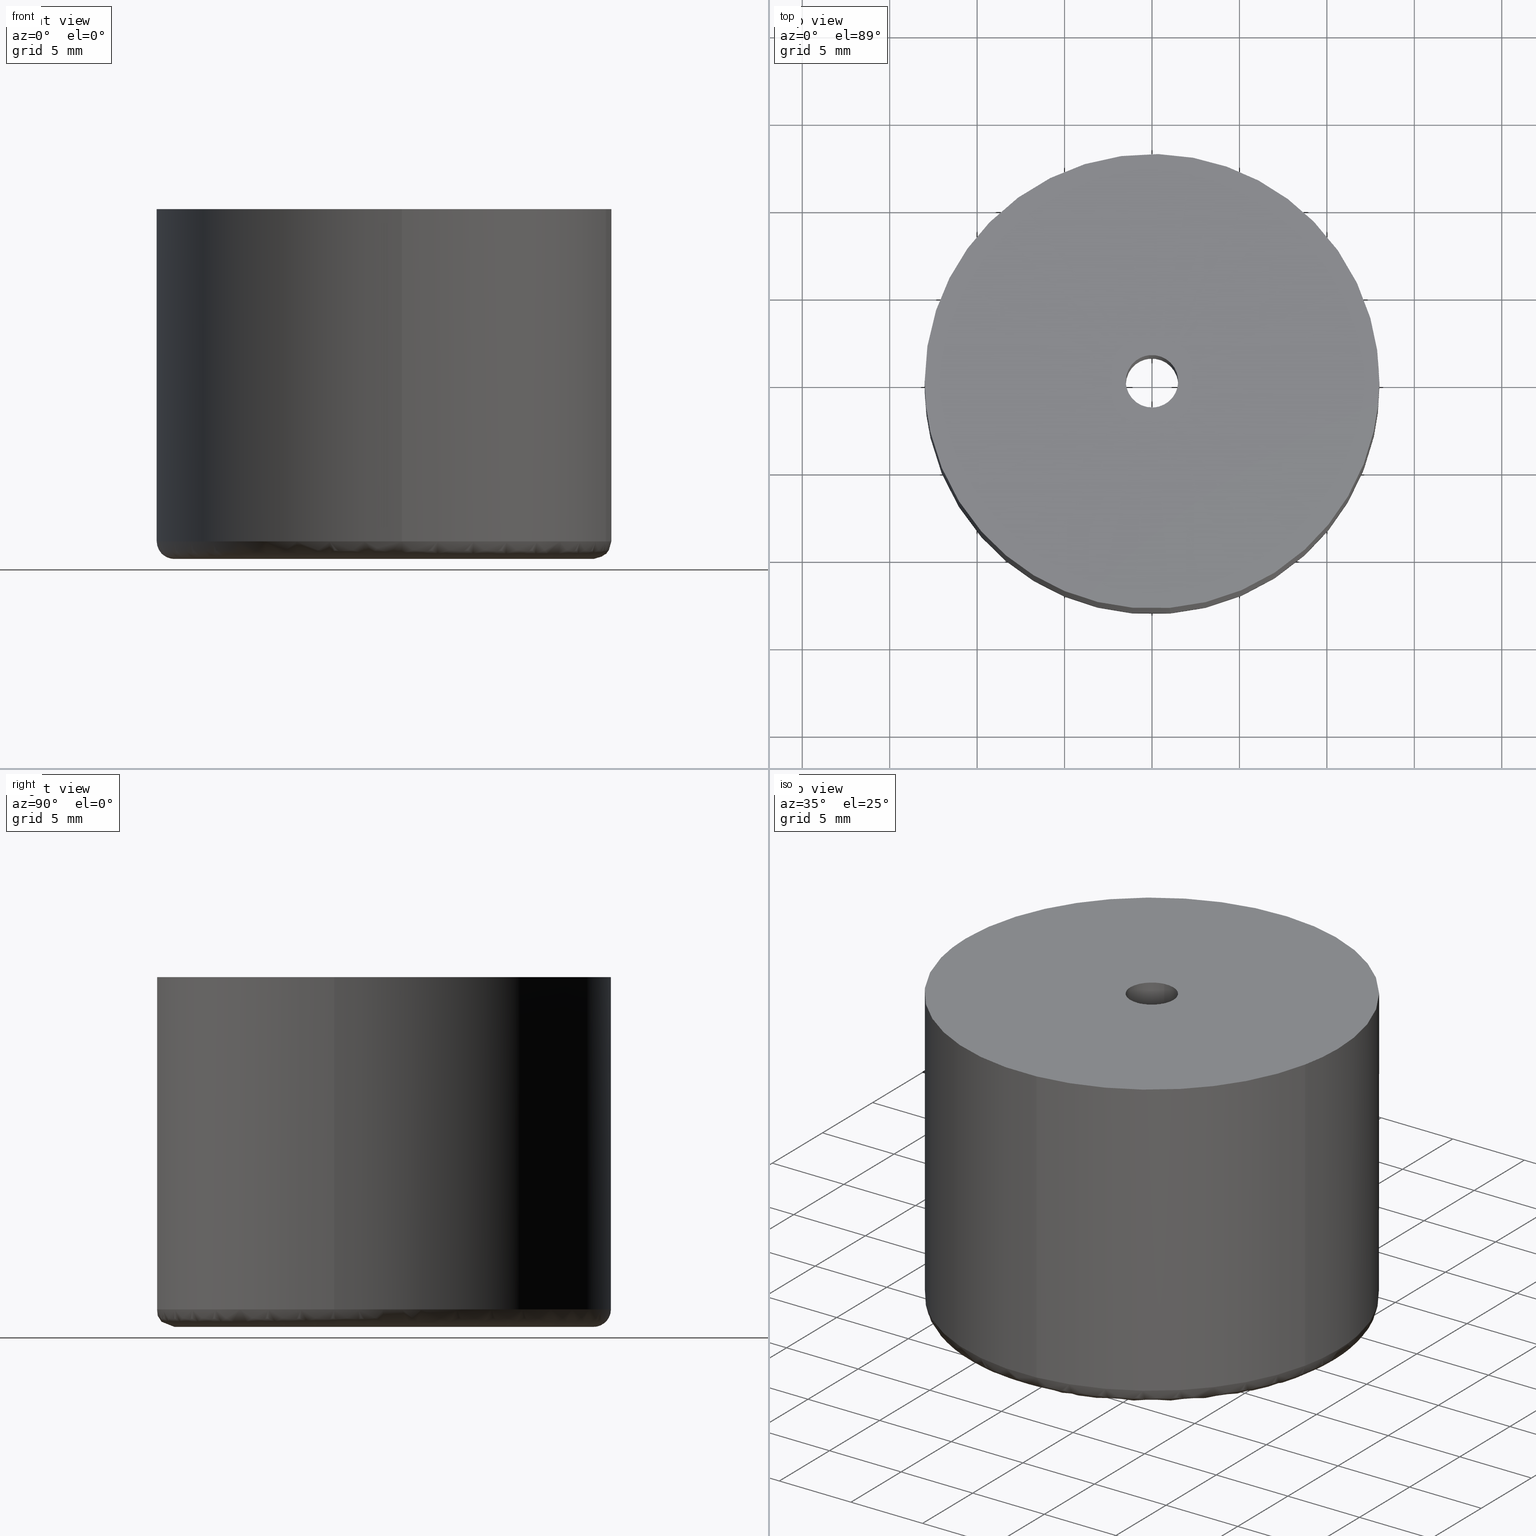
[diagram: canonical four-view strip — front | top / right | iso, engineering-drawing reading convention]
A machine part, canonical four-view strip (front | top / right | iso — engineering-drawing reading convention). The complete STEP part file that produces these views, byte-faithful:
ISO-10303-21;
HEADER;
/****************************************************************
 * Generated by software with PDE/Lib inside                    *
 * PDElib Version 4.4.1-0003, patched  Thursday August 19 11:58 *
 * International Technegroup Inc. (www.iti-oh.com)              *
 ****************************************************************/
FILE_DESCRIPTION((''),'2;1');
FILE_NAME('','2005-12-14T14:07:08',(''),(''),'','CADfix','');
FILE_SCHEMA(('AUTOMOTIVE_DESIGN'));
ENDSEC;
DATA;
#5=APPLICATION_CONTEXT('automotive design');
#6=APPLICATION_PROTOCOL_DEFINITION('Draft International Standard','automotive_design',1998,#5);
#7=PRODUCT_CONTEXT('None',#5,'mechanical');
#8=PRODUCT('rubber foot','','None',(#7));
#9=PRODUCT_RELATED_PRODUCT_CATEGORY('part','description',(#8));
#10=PRODUCT_DEFINITION_FORMATION('None','None',#8);
#11=PRODUCT_DEFINITION_CONTEXT('part definition',#5,'design');
#12=PRODUCT_DEFINITION('None','None',#10,#11);
#18=(NAMED_UNIT(*)PLANE_ANGLE_UNIT()SI_UNIT($,.RADIAN.));
#19=DIMENSIONAL_EXPONENTS(0.0,0.0,0.0,0.0,0.0,0.0,0.0);
#20=PLANE_ANGLE_MEASURE_WITH_UNIT(PLANE_ANGLE_MEASURE(0.017453292500000),#18);
#24=(CONVERSION_BASED_UNIT('DEGREE',#20)NAMED_UNIT(#19)PLANE_ANGLE_UNIT());
#28=(NAMED_UNIT(*)SI_UNIT($,.STERADIAN.)SOLID_ANGLE_UNIT());
#32=(LENGTH_UNIT()NAMED_UNIT(*)SI_UNIT(.MILLI.,.METRE.));
#34=UNCERTAINTY_MEASURE_WITH_UNIT(LENGTH_MEASURE(0.001000000000000),#32,'DISTANCE_ACCURACY_VALUE','');
#36=(GEOMETRIC_REPRESENTATION_CONTEXT(3)GLOBAL_UNCERTAINTY_ASSIGNED_CONTEXT((#34))GLOBAL_UNIT_ASSIGNED_CONTEXT((#24,#28,#32))REPRESENTATION_CONTEXT('None','None'));
#37=AXIS2_PLACEMENT_3D('',#38,#39,#40);
#38=CARTESIAN_POINT('',(0.0,0.0,0.0));
#39=DIRECTION('',(0.0,0.0,1.0));
#40=DIRECTION('',(1.0,0.0,0.0));
#41=ADVANCED_BREP_SHAPE_REPRESENTATION('',(#37,#849),#36);
#42=PRODUCT_DEFINITION_SHAPE('','',#12);
#43=SHAPE_DEFINITION_REPRESENTATION(#42,#41);
#44=CARTESIAN_POINT('',(12.705251811717318,-2.753750501336992,20.475000000003593));
#45=CARTESIAN_POINT('',(12.696430323743089,-2.793259911915609,20.475000000003597));
#46=CARTESIAN_POINT('',(10.594710865327652,-12.206376751862107,20.475000000003604));
#47=CARTESIAN_POINT('',(0.983351133643640,-12.962807167651045,20.475000000003600));
#48=CARTESIAN_POINT('',(0.946819630360228,-12.965682259312320,20.475000000003593));
#49=CARTESIAN_POINT('',(12.705251811717318,-2.753750501336992,0.513124999852447));
#50=CARTESIAN_POINT('',(12.696430323743089,-2.793259911915609,0.513124999852447));
#51=CARTESIAN_POINT('',(10.594710865327652,-12.206376751862107,0.513124999852447));
#52=CARTESIAN_POINT('',(0.983351133643640,-12.962807167651045,0.513124999852447));
#53=CARTESIAN_POINT('',(0.946819630360228,-12.965682259312320,0.513124999852447));
#61=(BOUNDED_SURFACE()B_SPLINE_SURFACE(2,1,((#44,#49),(#45,#50),(#46,#51),(#47,#52),(#48,#53)),.UNSPECIFIED.,.F.,.F.,.U.)B_SPLINE_SURFACE_WITH_KNOTS((3,1,1,3),(2,2),(0.0,0.085578205599617,17.199411616126010,17.284989678366841),(0.0,19.961875000151149),.UNSPECIFIED.)GEOMETRIC_REPRESENTATION_ITEM()RATIONAL_B_SPLINE_SURFACE(((0.907680205931852,0.907680205931852),(0.906977187955774,0.906977187955774),(0.765685424949238,0.765685424949238),(1.001171694663996,1.001171694663996),(1.002343389327992,1.002343389327992)))REPRESENTATION_ITEM('')SURFACE());
#62=CARTESIAN_POINT('',(12.687596999485550,-2.832822334452530,1.000000000000004));
#63=VERTEX_POINT('',#62);
#64=CARTESIAN_POINT('',(1.019960697844671,-12.959925932457899,1.000000000000026));
#65=VERTEX_POINT('',#64);
#66=CARTESIAN_POINT('',(12.687596999485553,-2.832822334452531,1.000000000000004));
#67=CARTESIAN_POINT('',(10.594716131196428,-12.206381947379535,1.000000000000014));
#68=CARTESIAN_POINT('',(1.019960697844671,-12.959925932457905,1.000000000000026));
#76=(BOUNDED_CURVE()B_SPLINE_CURVE(2,(#66,#67,#68),.UNSPECIFIED.,.F.,.U.)B_SPLINE_CURVE_WITH_KNOTS((3,3),(0.537286560370751,0.736331400453952),.UNSPECIFIED.)CURVE()GEOMETRIC_REPRESENTATION_ITEM()RATIONAL_B_SPLINE_CURVE((0.925662740296602,0.762027680026814,0.969723564491107))REPRESENTATION_ITEM(''));
#77=EDGE_CURVE('',#63,#65,#76,.T.);
#78=ORIENTED_EDGE('',*,*,#77,.F.);
#79=CARTESIAN_POINT('',(12.687596976655650,-2.832822436703005,20.0));
#80=VERTEX_POINT('',#79);
#81=CARTESIAN_POINT('',(12.687596976655650,-2.832822436703005,20.0));
#82=CARTESIAN_POINT('',(12.687596999485550,-2.832822334452530,1.000000000000004));
#83=QUASI_UNIFORM_CURVE('',1,(#81,#82),.UNSPECIFIED.,.F.,.U.);
#84=EDGE_CURVE('',#80,#63,#83,.T.);
#85=ORIENTED_EDGE('',*,*,#84,.F.);
#86=CARTESIAN_POINT('',(1.019960790914386,-12.959925925133270,20.0));
#87=VERTEX_POINT('',#86);
#88=CARTESIAN_POINT('',(12.687596976655650,-2.832822436703005,19.999999999999996));
#89=CARTESIAN_POINT('',(10.594716066193335,-12.206381883309835,20.000000000000004));
#90=CARTESIAN_POINT('',(1.019960790914386,-12.959925925133268,20.000000000000004));
#98=(BOUNDED_CURVE()B_SPLINE_CURVE(2,(#88,#89,#90),.UNSPECIFIED.,.F.,.U.)B_SPLINE_CURVE_WITH_KNOTS((3,3),(0.537286561689504,0.736331399222893),.UNSPECIFIED.)CURVE()GEOMETRIC_REPRESENTATION_ITEM()RATIONAL_B_SPLINE_CURVE((0.925662738128303,0.762027682414940,0.969723561921979))REPRESENTATION_ITEM(''));
#99=EDGE_CURVE('',#80,#87,#98,.T.);
#100=ORIENTED_EDGE('',*,*,#99,.T.);
#101=CARTESIAN_POINT('',(1.019960790914386,-12.959925925133270,20.0));
#102=CARTESIAN_POINT('',(1.019960697844671,-12.959925932457899,1.000000000000026));
#103=QUASI_UNIFORM_CURVE('',1,(#101,#102),.UNSPECIFIED.,.F.,.U.);
#104=EDGE_CURVE('',#87,#65,#103,.T.);
#105=ORIENTED_EDGE('',*,*,#104,.T.);
#106=EDGE_LOOP('',(#78,#85,#100,#105));
#107=FACE_OUTER_BOUND('',#106,.T.);
#108=ADVANCED_FACE('',(#107),#61,.T.);
#109=CARTESIAN_POINT('',(1.019968244461983,-12.959925338530660,20.475000000003600));
#110=CARTESIAN_POINT('',(-11.939957094068674,-13.979893582992641,20.475000000003604));
#111=CARTESIAN_POINT('',(-12.959925338530660,-1.019968244461983,20.475000000003600));
#112=CARTESIAN_POINT('',(-13.979893582992641,11.939957094068674,20.475000000003604));
#113=CARTESIAN_POINT('',(-1.019968244461983,12.959925338530660,20.475000000003600));
#114=CARTESIAN_POINT('',(11.939957094068674,13.979893582992641,20.475000000003604));
#115=CARTESIAN_POINT('',(12.959925338530660,1.019968244461983,20.475000000003600));
#116=CARTESIAN_POINT('',(13.113146095097436,-0.926886058307065,20.475000000003597));
#117=CARTESIAN_POINT('',(12.687595149701604,-2.832830619233736,20.475000000003593));
#118=CARTESIAN_POINT('',(1.019968244461983,-12.959925338530660,0.513124999852447));
#119=CARTESIAN_POINT('',(-11.939957094068674,-13.979893582992641,0.513124999852447));
#120=CARTESIAN_POINT('',(-12.959925338530660,-1.019968244461983,0.513124999852447));
#121=CARTESIAN_POINT('',(-13.979893582992641,11.939957094068674,0.513124999852447));
#122=CARTESIAN_POINT('',(-1.019968244461983,12.959925338530660,0.513124999852447));
#123=CARTESIAN_POINT('',(11.939957094068674,13.979893582992641,0.513124999852447));
#124=CARTESIAN_POINT('',(12.959925338530660,1.019968244461983,0.513124999852447));
#125=CARTESIAN_POINT('',(13.113146095097436,-0.926886058307065,0.513124999852447));
#126=CARTESIAN_POINT('',(12.687595149701604,-2.832830619233736,0.513124999852447));
#134=(BOUNDED_SURFACE()B_SPLINE_SURFACE(2,1,((#109,#118),(#110,#119),(#111,#120),(#112,#121),(#113,#122),(#114,#123),(#115,#124),(#116,#125),(#117,#126)),.UNSPECIFIED.,.F.,.F.,.U.)B_SPLINE_SURFACE_WITH_KNOTS((3,2,2,2,3),(2,2),(0.0,21.539105243400929,43.078210486801872,64.617315730202805,68.925136778882987),(0.0,19.961875000151149),.UNSPECIFIED.)GEOMETRIC_REPRESENTATION_ITEM()RATIONAL_B_SPLINE_SURFACE(((1.0,1.0),(0.707106781186548,0.707106781186548),(1.0,1.0),(0.707106781186548,0.707106781186548),(1.0,1.0),(0.707106781186548,0.707106781186548),(1.0,1.0),(0.941421356237310,0.941421356237310),(0.906274169979695,0.906274169979695)))REPRESENTATION_ITEM('')SURFACE());
#135=CARTESIAN_POINT('',(13.0,0.0,1.000000000000014));
#136=VERTEX_POINT('',#135);
#137=CARTESIAN_POINT('',(13.0,0.0,1.000000000000014));
#138=CARTESIAN_POINT('',(12.999999999999996,-1.433637033025100,1.000000000000014));
#139=CARTESIAN_POINT('',(12.687596999485551,-2.832822334452530,1.000000000000004));
#147=(BOUNDED_CURVE()B_SPLINE_CURVE(2,(#137,#138,#139),.UNSPECIFIED.,.F.,.U.)B_SPLINE_CURVE_WITH_KNOTS((3,3),(0.500000000000000,0.537286560370751),.UNSPECIFIED.)CURVE()GEOMETRIC_REPRESENTATION_ITEM()RATIONAL_B_SPLINE_CURVE((1.0,0.956316077258115,0.925662740296602))REPRESENTATION_ITEM(''));
#148=EDGE_CURVE('',#136,#63,#147,.T.);
#149=ORIENTED_EDGE('',*,*,#148,.F.);
#150=CARTESIAN_POINT('',(-0.326691240763947,12.995894460682880,0.999999999856145));
#151=VERTEX_POINT('',#150);
#152=CARTESIAN_POINT('',(-0.326691240763947,12.995894460682887,0.999999999856145));
#153=CARTESIAN_POINT('',(-0.163371417604494,13.000000000000004,1.000000000000014));
#154=CARTESIAN_POINT('',(0.0,13.0,1.000000000000014));
#155=CARTESIAN_POINT('',(13.0,13.0,1.000000000000014));
#156=CARTESIAN_POINT('',(13.0,0.0,1.000000000000014));
#164=(BOUNDED_CURVE()B_SPLINE_CURVE(2,(#152,#153,#154,#155,#156),.UNSPECIFIED.,.F.,.U.)B_SPLINE_CURVE_WITH_KNOTS((3,2,3),(0.245579891769793,0.250000000000000,0.500000000000000),.UNSPECIFIED.)CURVE()GEOMETRIC_REPRESENTATION_ITEM()RATIONAL_B_SPLINE_CURVE((0.989826157681542,0.994821521091803,1.0,0.707106781186547,1.0))REPRESENTATION_ITEM(''));
#165=EDGE_CURVE('',#151,#136,#164,.T.);
#166=ORIENTED_EDGE('',*,*,#165,.F.);
#167=CARTESIAN_POINT('',(-13.0,0.0,1.000000000000014));
#168=VERTEX_POINT('',#167);
#169=CARTESIAN_POINT('',(-13.0,0.0,1.000000000000014));
#170=CARTESIAN_POINT('',(-13.000000000000002,12.677312390347351,1.000000000000014));
#171=CARTESIAN_POINT('',(-0.326691240763947,12.995894460682887,0.999999999856145));
#179=(BOUNDED_CURVE()B_SPLINE_CURVE(2,(#169,#170,#171),.UNSPECIFIED.,.F.,.U.)B_SPLINE_CURVE_WITH_KNOTS((3,3),(0.0,0.245579891769793),.UNSPECIFIED.)CURVE()GEOMETRIC_REPRESENTATION_ITEM()RATIONAL_B_SPLINE_CURVE((1.0,0.712285260094745,0.989826157681542))REPRESENTATION_ITEM(''));
#180=EDGE_CURVE('',#168,#151,#179,.T.);
#181=ORIENTED_EDGE('',*,*,#180,.F.);
#182=CARTESIAN_POINT('',(-12.995894460682891,-0.326691240763720,0.999999999856132));
#183=VERTEX_POINT('',#182);
#184=CARTESIAN_POINT('',(-12.995894460682889,-0.326691240763720,0.999999999856132));
#185=CARTESIAN_POINT('',(-13.000000000000002,-0.163371417604268,1.000000000000014));
#186=CARTESIAN_POINT('',(-13.0,0.0,1.000000000000014));
#194=(BOUNDED_CURVE()B_SPLINE_CURVE(2,(#184,#185,#186),.UNSPECIFIED.,.F.,.U.)B_SPLINE_CURVE_WITH_KNOTS((3,3),(0.995579891769799,1.0),.UNSPECIFIED.)CURVE()GEOMETRIC_REPRESENTATION_ITEM()RATIONAL_B_SPLINE_CURVE((0.989826157681556,0.994821521091810,1.0))REPRESENTATION_ITEM(''));
#195=EDGE_CURVE('',#183,#168,#194,.T.);
#196=ORIENTED_EDGE('',*,*,#195,.F.);
#197=CARTESIAN_POINT('',(1.019960697844671,-12.959925932457905,1.000000000000026));
#198=CARTESIAN_POINT('',(0.510767600280531,-13.000000000000004,1.000000000000014));
#199=CARTESIAN_POINT('',(0.0,-13.0,1.000000000000014));
#200=CARTESIAN_POINT('',(-12.677312390347860,-13.0,1.000000000000014));
#201=CARTESIAN_POINT('',(-12.995894460682889,-0.326691240763720,0.999999999856132));
#209=(BOUNDED_CURVE()B_SPLINE_CURVE(2,(#197,#198,#199,#200,#201),.UNSPECIFIED.,.F.,.U.)B_SPLINE_CURVE_WITH_KNOTS((3,2,3),(0.736331400453952,0.750000000000000,0.995579891769800),.UNSPECIFIED.)CURVE()GEOMETRIC_REPRESENTATION_ITEM()RATIONAL_B_SPLINE_CURVE((0.969723564491107,0.983986239529144,1.0,0.712285260094736,0.989826157681558))REPRESENTATION_ITEM(''));
#210=EDGE_CURVE('',#65,#183,#209,.T.);
#211=ORIENTED_EDGE('',*,*,#210,.F.);
#212=ORIENTED_EDGE('',*,*,#104,.F.);
#213=CARTESIAN_POINT('',(-13.0,0.0,20.0));
#214=VERTEX_POINT('',#213);
#215=CARTESIAN_POINT('',(1.019960790914386,-12.959925925133268,20.000000000000004));
#216=CARTESIAN_POINT('',(0.510767647031337,-13.0,20.0));
#217=CARTESIAN_POINT('',(0.0,-13.0,20.0));
#218=CARTESIAN_POINT('',(-13.0,-13.0,20.0));
#219=CARTESIAN_POINT('',(-13.0,0.0,20.0));
#227=(BOUNDED_CURVE()B_SPLINE_CURVE(2,(#215,#216,#217,#218,#219),.UNSPECIFIED.,.F.,.U.)B_SPLINE_CURVE_WITH_KNOTS((3,2,3),(0.736331399222893,0.750000000000000,1.0),.UNSPECIFIED.)CURVE()GEOMETRIC_REPRESENTATION_ITEM()RATIONAL_B_SPLINE_CURVE((0.969723561921979,0.983986238086868,1.0,0.707106781186547,1.0))REPRESENTATION_ITEM(''));
#228=EDGE_CURVE('',#87,#214,#227,.T.);
#229=ORIENTED_EDGE('',*,*,#228,.T.);
#230=CARTESIAN_POINT('',(13.0,0.0,20.0));
#231=VERTEX_POINT('',#230);
#232=CARTESIAN_POINT('',(-13.0,0.0,20.0));
#233=CARTESIAN_POINT('',(-13.0,13.0,20.0));
#234=CARTESIAN_POINT('',(0.0,13.0,20.0));
#235=CARTESIAN_POINT('',(13.0,13.0,20.0));
#236=CARTESIAN_POINT('',(13.0,0.0,20.0));
#244=(BOUNDED_CURVE()B_SPLINE_CURVE(2,(#232,#233,#234,#235,#236),.UNSPECIFIED.,.F.,.U.)B_SPLINE_CURVE_WITH_KNOTS((3,2,3),(0.0,0.250000000000000,0.500000000000000),.UNSPECIFIED.)CURVE()GEOMETRIC_REPRESENTATION_ITEM()RATIONAL_B_SPLINE_CURVE((1.0,0.707106781186547,1.0,0.707106781186547,1.0))REPRESENTATION_ITEM(''));
#245=EDGE_CURVE('',#214,#231,#244,.T.);
#246=ORIENTED_EDGE('',*,*,#245,.T.);
#247=CARTESIAN_POINT('',(13.0,0.0,20.0));
#248=CARTESIAN_POINT('',(13.000000000000005,-1.433637086046247,20.000000000000004));
#249=CARTESIAN_POINT('',(12.687596976655650,-2.832822436703005,19.999999999999996));
#257=(BOUNDED_CURVE()B_SPLINE_CURVE(2,(#247,#248,#249),.UNSPECIFIED.,.F.,.U.)B_SPLINE_CURVE_WITH_KNOTS((3,3),(0.500000000000000,0.537286561689504),.UNSPECIFIED.)CURVE()GEOMETRIC_REPRESENTATION_ITEM()RATIONAL_B_SPLINE_CURVE((1.0,0.956316075713099,0.925662738128303))REPRESENTATION_ITEM(''));
#258=EDGE_CURVE('',#231,#80,#257,.T.);
#259=ORIENTED_EDGE('',*,*,#258,.T.);
#260=ORIENTED_EDGE('',*,*,#84,.T.);
#261=EDGE_LOOP('',(#149,#166,#181,#196,#211,#212,#229,#246,#259,#260));
#262=FACE_OUTER_BOUND('',#261,.T.);
#263=ADVANCED_FACE('',(#262),#134,.T.);
#264=CARTESIAN_POINT('',(-0.177051351985138,1.489514289545500,20.300000000000008));
#265=CARTESIAN_POINT('',(-0.134422092956966,1.494581423172908,20.300000000000004));
#266=CARTESIAN_POINT('',(-0.091572809302285,1.497202197632800,20.300000000000001));
#267=CARTESIAN_POINT('',(1.405629388330515,1.588775006935085,20.300000000000008));
#268=CARTESIAN_POINT('',(1.497202197632800,0.091572809302285,20.300000000000001));
#269=CARTESIAN_POINT('',(1.588775006935085,-1.405629388330515,20.300000000000008));
#270=CARTESIAN_POINT('',(0.091572809302285,-1.497202197632800,20.300000000000001));
#271=CARTESIAN_POINT('',(-0.177051351985138,1.489514289545500,7.692500000000000));
#272=CARTESIAN_POINT('',(-0.134422092956966,1.494581423172908,7.692499999999999));
#273=CARTESIAN_POINT('',(-0.091572809302285,1.497202197632800,7.692499999999999));
#274=CARTESIAN_POINT('',(1.405629388330515,1.588775006935085,7.692499999999999));
#275=CARTESIAN_POINT('',(1.497202197632800,0.091572809302285,7.692499999999999));
#276=CARTESIAN_POINT('',(1.588775006935085,-1.405629388330515,7.692499999999999));
#277=CARTESIAN_POINT('',(0.091572809302285,-1.497202197632800,7.692499999999999));
#285=(BOUNDED_SURFACE()B_SPLINE_SURFACE(2,1,((#264,#271),(#265,#272),(#266,#273),(#267,#274),(#268,#275),(#269,#276),(#270,#277)),.UNSPECIFIED.,.F.,.F.,.U.)B_SPLINE_SURFACE_WITH_KNOTS((3,2,2,3),(2,2),(3.078760800517997,3.141592653589793,4.712388980384690,6.283185307179586),(0.0,12.607500000000011),.UNSPECIFIED.)GEOMETRIC_REPRESENTATION_ITEM()RATIONAL_B_SPLINE_SURFACE(((0.977505800795127,0.977505800795127),(0.988284271247462,0.988284271247462),(1.0,1.0),(0.707106781186548,0.707106781186548),(1.0,1.0),(0.707106781186548,0.707106781186548),(1.0,1.0)))REPRESENTATION_ITEM('')SURFACE());
#286=CARTESIAN_POINT('',(-0.177051352032236,1.489514289539901,20.0));
#287=VERTEX_POINT('',#286);
#288=CARTESIAN_POINT('',(1.500000000000000,0.0,20.0));
#289=VERTEX_POINT('',#288);
#290=CARTESIAN_POINT('',(-0.177051352032236,1.489514289539901,19.999999999999996));
#291=CARTESIAN_POINT('',(-0.088836179525462,1.500000000000000,20.000000000000004));
#292=CARTESIAN_POINT('',(0.0,1.500000000000000,20.0));
#293=CARTESIAN_POINT('',(1.500000000000000,1.500000000000000,19.999999999999996));
#294=CARTESIAN_POINT('',(1.500000000000000,0.0,20.0));
#302=(BOUNDED_CURVE()B_SPLINE_CURVE(2,(#290,#291,#292,#293,#294),.UNSPECIFIED.,.F.,.U.)B_SPLINE_CURVE_WITH_KNOTS((3,2,3),(0.229562473504956,0.250000000000000,0.500000000000000),.UNSPECIFIED.)CURVE()GEOMETRIC_REPRESENTATION_ITEM()RATIONAL_B_SPLINE_CURVE((0.956026754166937,0.976055948321126,1.0,0.707106781186548,1.0))REPRESENTATION_ITEM(''));
#303=EDGE_CURVE('',#287,#289,#302,.T.);
#304=ORIENTED_EDGE('',*,*,#303,.F.);
#305=CARTESIAN_POINT('',(-0.177051352032237,1.489514289539901,8.0));
#306=VERTEX_POINT('',#305);
#307=CARTESIAN_POINT('',(-0.177051352032236,1.489514289539901,20.0));
#308=CARTESIAN_POINT('',(-0.177051352032237,1.489514289539901,8.0));
#309=QUASI_UNIFORM_CURVE('',1,(#307,#308),.UNSPECIFIED.,.F.,.U.);
#310=EDGE_CURVE('',#287,#306,#309,.T.);
#311=ORIENTED_EDGE('',*,*,#310,.T.);
#312=CARTESIAN_POINT('',(1.500000000000000,0.0,8.0));
#313=VERTEX_POINT('',#312);
#314=CARTESIAN_POINT('',(-0.177051352032237,1.489514289539901,8.0));
#315=CARTESIAN_POINT('',(-0.088836179525462,1.500000000000000,8.0));
#316=CARTESIAN_POINT('',(0.0,1.500000000000000,8.0));
#317=CARTESIAN_POINT('',(1.500000000000000,1.500000000000000,8.0));
#318=CARTESIAN_POINT('',(1.500000000000000,0.0,8.0));
#326=(BOUNDED_CURVE()B_SPLINE_CURVE(2,(#314,#315,#316,#317,#318),.UNSPECIFIED.,.F.,.U.)B_SPLINE_CURVE_WITH_KNOTS((3,2,3),(0.229562473504956,0.250000000000000,0.500000000000000),.UNSPECIFIED.)CURVE()GEOMETRIC_REPRESENTATION_ITEM()RATIONAL_B_SPLINE_CURVE((0.956026754166937,0.976055948321126,1.0,0.707106781186548,1.0))REPRESENTATION_ITEM(''));
#327=EDGE_CURVE('',#306,#313,#326,.T.);
#328=ORIENTED_EDGE('',*,*,#327,.T.);
#329=CARTESIAN_POINT('',(0.091572809317482,-1.497202197631871,8.0));
#330=VERTEX_POINT('',#329);
#331=CARTESIAN_POINT('',(1.500000000000000,0.0,8.0));
#332=CARTESIAN_POINT('',(1.500000000000000,-1.411059100329843,8.0));
#333=CARTESIAN_POINT('',(0.091572809317482,-1.497202197631871,8.0));
#341=(BOUNDED_CURVE()B_SPLINE_CURVE(2,(#331,#332,#333),.UNSPECIFIED.,.F.,.U.)B_SPLINE_CURVE_WITH_KNOTS((3,3),(0.500000000000000,0.739332962238465),.UNSPECIFIED.)CURVE()GEOMETRIC_REPRESENTATION_ITEM()RATIONAL_B_SPLINE_CURVE((1.0,0.719603993287270,0.976072041665695))REPRESENTATION_ITEM(''));
#342=EDGE_CURVE('',#313,#330,#341,.T.);
#343=ORIENTED_EDGE('',*,*,#342,.T.);
#344=CARTESIAN_POINT('',(0.091572809317482,-1.497202197631871,20.0));
#345=VERTEX_POINT('',#344);
#346=CARTESIAN_POINT('',(0.091572809317482,-1.497202197631871,20.0));
#347=CARTESIAN_POINT('',(0.091572809317482,-1.497202197631871,8.0));
#348=QUASI_UNIFORM_CURVE('',1,(#346,#347),.UNSPECIFIED.,.F.,.U.);
#349=EDGE_CURVE('',#345,#330,#348,.T.);
#350=ORIENTED_EDGE('',*,*,#349,.F.);
#351=CARTESIAN_POINT('',(1.500000000000000,0.0,20.0));
#352=CARTESIAN_POINT('',(1.500000000000000,-1.411059100329843,20.0));
#353=CARTESIAN_POINT('',(0.091572809317482,-1.497202197631871,20.0));
#361=(BOUNDED_CURVE()B_SPLINE_CURVE(2,(#351,#352,#353),.UNSPECIFIED.,.F.,.U.)B_SPLINE_CURVE_WITH_KNOTS((3,3),(0.500000000000000,0.739332962238465),.UNSPECIFIED.)CURVE()GEOMETRIC_REPRESENTATION_ITEM()RATIONAL_B_SPLINE_CURVE((1.0,0.719603993287270,0.976072041665695))REPRESENTATION_ITEM(''));
#362=EDGE_CURVE('',#289,#345,#361,.T.);
#363=ORIENTED_EDGE('',*,*,#362,.F.);
#364=EDGE_LOOP('',(#304,#311,#328,#343,#350,#363));
#365=FACE_OUTER_BOUND('',#364,.T.);
#366=ADVANCED_FACE('',(#365),#285,.F.);
#367=CARTESIAN_POINT('',(0.091572809302285,-1.497202197632800,20.300000000000001));
#368=CARTESIAN_POINT('',(-1.405629388330515,-1.588775006935085,20.300000000000008));
#369=CARTESIAN_POINT('',(-1.497202197632800,-0.091572809302285,20.300000000000001));
#370=CARTESIAN_POINT('',(-1.583679295098791,1.322315236259252,20.300000000000001));
#371=CARTESIAN_POINT('',(-0.177051351985138,1.489514289545500,20.300000000000008));
#372=CARTESIAN_POINT('',(0.091572809302285,-1.497202197632800,7.692499999999999));
#373=CARTESIAN_POINT('',(-1.405629388330515,-1.588775006935085,7.692499999999999));
#374=CARTESIAN_POINT('',(-1.497202197632800,-0.091572809302285,7.692499999999999));
#375=CARTESIAN_POINT('',(-1.583679295098791,1.322315236259252,7.692499999999999));
#376=CARTESIAN_POINT('',(-0.177051351985138,1.489514289545500,7.692500000000000));
#384=(BOUNDED_SURFACE()B_SPLINE_SURFACE(2,1,((#367,#372),(#368,#373),(#369,#374),(#370,#375),(#371,#376)),.UNSPECIFIED.,.F.,.F.,.U.)B_SPLINE_SURFACE_WITH_KNOTS((3,2,3),(2,2),(0.0,1.570796326794897,3.078760800517997),(0.0,12.607500000000011),.UNSPECIFIED.)GEOMETRIC_REPRESENTATION_ITEM()RATIONAL_B_SPLINE_SURFACE(((1.0,1.0),(0.707106781186548,0.707106781186548),(1.0,1.0),(0.718822509939086,0.718822509939086),(0.977505800795127,0.977505800795127)))REPRESENTATION_ITEM('')SURFACE());
#385=CARTESIAN_POINT('',(-1.500000000000000,0.0,20.0));
#386=VERTEX_POINT('',#385);
#387=CARTESIAN_POINT('',(-1.500000000000000,0.0,20.0));
#388=CARTESIAN_POINT('',(-1.500000000000000,1.332261788842205,20.000000000000004));
#389=CARTESIAN_POINT('',(-0.177051352032237,1.489514289539901,20.000000000000004));
#397=(BOUNDED_CURVE()B_SPLINE_CURVE(2,(#387,#388,#389),.UNSPECIFIED.,.F.,.U.)B_SPLINE_CURVE_WITH_KNOTS((3,3),(0.0,0.229562473504956),.UNSPECIFIED.)CURVE()GEOMETRIC_REPRESENTATION_ITEM()RATIONAL_B_SPLINE_CURVE((1.0,0.731050832865422,0.956026754166937))REPRESENTATION_ITEM(''));
#398=EDGE_CURVE('',#386,#287,#397,.T.);
#399=ORIENTED_EDGE('',*,*,#398,.F.);
#400=CARTESIAN_POINT('',(0.091572809317482,-1.497202197631870,20.0));
#401=CARTESIAN_POINT('',(0.045829144963122,-1.500000000000000,19.999999999999996));
#402=CARTESIAN_POINT('',(0.0,-1.500000000000000,20.0));
#403=CARTESIAN_POINT('',(-1.500000000000000,-1.500000000000000,19.999999999999996));
#404=CARTESIAN_POINT('',(-1.500000000000000,0.0,20.0));
#412=(BOUNDED_CURVE()B_SPLINE_CURVE(2,(#400,#401,#402,#403,#404),.UNSPECIFIED.,.F.,.U.)B_SPLINE_CURVE_WITH_KNOTS((3,2,3),(0.739332962238466,0.750000000000000,1.0),.UNSPECIFIED.)CURVE()GEOMETRIC_REPRESENTATION_ITEM()RATIONAL_B_SPLINE_CURVE((0.976072041665695,0.987502787899278,1.0,0.707106781186548,1.0))REPRESENTATION_ITEM(''));
#413=EDGE_CURVE('',#345,#386,#412,.T.);
#414=ORIENTED_EDGE('',*,*,#413,.F.);
#415=ORIENTED_EDGE('',*,*,#349,.T.);
#416=CARTESIAN_POINT('',(-1.500000000000000,0.0,8.0));
#417=VERTEX_POINT('',#416);
#418=CARTESIAN_POINT('',(0.091572809317482,-1.497202197631870,8.0));
#419=CARTESIAN_POINT('',(0.045829144963122,-1.500000000000000,8.0));
#420=CARTESIAN_POINT('',(0.0,-1.500000000000000,8.0));
#421=CARTESIAN_POINT('',(-1.500000000000000,-1.500000000000000,8.0));
#422=CARTESIAN_POINT('',(-1.500000000000000,0.0,8.0));
#430=(BOUNDED_CURVE()B_SPLINE_CURVE(2,(#418,#419,#420,#421,#422),.UNSPECIFIED.,.F.,.U.)B_SPLINE_CURVE_WITH_KNOTS((3,2,3),(0.739332962238466,0.750000000000000,1.0),.UNSPECIFIED.)CURVE()GEOMETRIC_REPRESENTATION_ITEM()RATIONAL_B_SPLINE_CURVE((0.976072041665695,0.987502787899278,1.0,0.707106781186548,1.0))REPRESENTATION_ITEM(''));
#431=EDGE_CURVE('',#330,#417,#430,.T.);
#432=ORIENTED_EDGE('',*,*,#431,.T.);
#433=CARTESIAN_POINT('',(-1.500000000000000,0.0,8.0));
#434=CARTESIAN_POINT('',(-1.500000000000000,1.332261788842205,8.0));
#435=CARTESIAN_POINT('',(-0.177051352032237,1.489514289539901,8.000000000000002));
#443=(BOUNDED_CURVE()B_SPLINE_CURVE(2,(#433,#434,#435),.UNSPECIFIED.,.F.,.U.)B_SPLINE_CURVE_WITH_KNOTS((3,3),(0.0,0.229562473504956),.UNSPECIFIED.)CURVE()GEOMETRIC_REPRESENTATION_ITEM()RATIONAL_B_SPLINE_CURVE((1.0,0.731050832865422,0.956026754166937))REPRESENTATION_ITEM(''));
#444=EDGE_CURVE('',#417,#306,#443,.T.);
#445=ORIENTED_EDGE('',*,*,#444,.T.);
#446=ORIENTED_EDGE('',*,*,#310,.F.);
#447=EDGE_LOOP('',(#399,#414,#415,#432,#445,#446));
#448=FACE_OUTER_BOUND('',#447,.T.);
#449=ADVANCED_FACE('',(#448),#384,.F.);
#450=CARTESIAN_POINT('',(-0.796616156477390,5.947548200551763,8.200000000000001));
#451=CARTESIAN_POINT('',(-0.752286149670043,5.952817493833363,8.200000000000001));
#452=CARTESIAN_POINT('',(-0.537688371827866,5.978325692691634,8.199999999999999));
#453=CARTESIAN_POINT('',(-0.366291237209142,5.988808790531200,8.199999999999999));
#454=CARTESIAN_POINT('',(5.622517553322059,6.355100027740342,8.199999999999999));
#455=CARTESIAN_POINT('',(5.988808790531200,0.366291237209142,8.199999999999999));
#456=CARTESIAN_POINT('',(6.355100027740342,-5.622517553322059,8.199999999999999));
#457=CARTESIAN_POINT('',(0.323221002574818,-5.991443078931932,8.199999999999999));
#458=CARTESIAN_POINT('',(0.280406612700376,-5.994061719196798,8.199999999999999));
#459=CARTESIAN_POINT('',(-0.796616156477390,5.947548200551763,-0.205000000000000));
#460=CARTESIAN_POINT('',(-0.752286149670043,5.952817493833363,-0.205000000000000));
#461=CARTESIAN_POINT('',(-0.537688371827866,5.978325692691634,-0.205000000000000));
#462=CARTESIAN_POINT('',(-0.366291237209142,5.988808790531200,-0.205000000000000));
#463=CARTESIAN_POINT('',(5.622517553322059,6.355100027740342,-0.205000000000000));
#464=CARTESIAN_POINT('',(5.988808790531200,0.366291237209142,-0.205000000000000));
#465=CARTESIAN_POINT('',(6.355100027740342,-5.622517553322059,-0.205000000000000));
#466=CARTESIAN_POINT('',(0.323221002574818,-5.991443078931932,-0.205000000000000));
#467=CARTESIAN_POINT('',(0.280406612700376,-5.994061719196798,-0.205000000000000));
#475=(BOUNDED_SURFACE()B_SPLINE_SURFACE(2,1,((#450,#459),(#451,#460),(#452,#461),(#453,#462),(#454,#463),(#455,#464),(#456,#465),(#457,#466),(#458,#467)),.UNSPECIFIED.,.F.,.F.,.U.)B_SPLINE_SURFACE_WITH_KNOTS((3,1,2,2,1,3),(2,2),(0.0,0.101389130768249,0.499034150646421,10.440159647600700,20.381285144554980,20.482695664807789),(0.0,8.405000000000001),.UNSPECIFIED.)GEOMETRIC_REPRESENTATION_ITEM()RATIONAL_B_SPLINE_SURFACE(((0.972009341915756,0.972009341915756),(0.974757571355441,0.974757571355441),(0.988284271247462,0.988284271247462),(1.0,1.0),(0.707106781186548,0.707106781186548),(1.0,1.0),(0.707106781186548,0.707106781186548),(1.002987836106434,1.002987836106434),(1.005975672212868,1.005975672212868)))REPRESENTATION_ITEM('')SURFACE());
#476=CARTESIAN_POINT('',(-0.708196321017467,5.958058238286496,-4.117171E-016));
#477=VERTEX_POINT('',#476);
#478=CARTESIAN_POINT('',(6.0,0.0,0.0));
#479=VERTEX_POINT('',#478);
#480=CARTESIAN_POINT('',(-0.708196321017467,5.958058238286496,-4.117171E-016));
#481=CARTESIAN_POINT('',(-0.355340126418063,6.0,0.0));
#482=CARTESIAN_POINT('',(0.0,6.0,0.0));
#483=CARTESIAN_POINT('',(6.0,6.0,0.0));
#484=CARTESIAN_POINT('',(6.0,0.0,0.0));
#492=(BOUNDED_CURVE()B_SPLINE_CURVE(2,(#480,#481,#482,#483,#484),.UNSPECIFIED.,.F.,.U.)B_SPLINE_CURVE_WITH_KNOTS((3,2,3),(0.229562731270752,0.250000000000000,0.500000000000000),.UNSPECIFIED.)CURVE()GEOMETRIC_REPRESENTATION_ITEM()RATIONAL_B_SPLINE_CURVE((0.956027259399068,0.976056250312540,1.0,0.707106781186548,1.0))REPRESENTATION_ITEM(''));
#493=EDGE_CURVE('',#477,#479,#492,.T.);
#494=ORIENTED_EDGE('',*,*,#493,.T.);
#495=CARTESIAN_POINT('',(0.366281832401029,-5.988809365739083,-1.629252E-014));
#496=VERTEX_POINT('',#495);
#497=CARTESIAN_POINT('',(6.0,0.0,0.0));
#498=CARTESIAN_POINT('',(6.0,-5.644245281695966,0.0));
#499=CARTESIAN_POINT('',(0.366281832401029,-5.988809365739083,-1.629252E-014));
#507=(BOUNDED_CURVE()B_SPLINE_CURVE(2,(#497,#498,#499),.UNSPECIFIED.,.F.,.U.)B_SPLINE_CURVE_WITH_KNOTS((3,3),(0.500000000000000,0.739333233209006),.UNSPECIFIED.)CURVE()GEOMETRIC_REPRESENTATION_ITEM()RATIONAL_B_SPLINE_CURVE((1.0,0.719603675825535,0.976072622407832))REPRESENTATION_ITEM(''));
#508=EDGE_CURVE('',#479,#496,#507,.T.);
#509=ORIENTED_EDGE('',*,*,#508,.T.);
#510=CARTESIAN_POINT('',(0.366281948464238,-5.988809358640717,8.0));
#511=VERTEX_POINT('',#510);
#512=CARTESIAN_POINT('',(0.366281948464238,-5.988809358640717,8.0));
#513=CARTESIAN_POINT('',(0.366281832401029,-5.988809365739083,-1.629252E-014));
#514=QUASI_UNIFORM_CURVE('',1,(#512,#513),.UNSPECIFIED.,.F.,.U.);
#515=EDGE_CURVE('',#511,#496,#514,.T.);
#516=ORIENTED_EDGE('',*,*,#515,.F.);
#517=CARTESIAN_POINT('',(6.0,0.0,8.0));
#518=VERTEX_POINT('',#517);
#519=CARTESIAN_POINT('',(6.0,0.0,8.0));
#520=CARTESIAN_POINT('',(6.0,-5.644245172106031,8.0));
#521=CARTESIAN_POINT('',(0.366281948464238,-5.988809358640717,8.0));
#529=(BOUNDED_CURVE()B_SPLINE_CURVE(2,(#519,#520,#521),.UNSPECIFIED.,.F.,.U.)B_SPLINE_CURVE_WITH_KNOTS((3,3),(0.500000000000000,0.739333229865045),.UNSPECIFIED.)CURVE()GEOMETRIC_REPRESENTATION_ITEM()RATIONAL_B_SPLINE_CURVE((1.0,0.719603679743228,0.976072615241070))REPRESENTATION_ITEM(''));
#530=EDGE_CURVE('',#518,#511,#529,.T.);
#531=ORIENTED_EDGE('',*,*,#530,.F.);
#532=CARTESIAN_POINT('',(-0.708196433134403,5.958058224960043,8.0));
#533=VERTEX_POINT('',#532);
#534=CARTESIAN_POINT('',(-0.708196433134403,5.958058224960043,8.0));
#535=CARTESIAN_POINT('',(-0.355340183069149,6.0,8.0));
#536=CARTESIAN_POINT('',(0.0,6.0,8.0));
#537=CARTESIAN_POINT('',(6.0,6.0,8.0));
#538=CARTESIAN_POINT('',(6.0,0.0,8.0));
#546=(BOUNDED_CURVE()B_SPLINE_CURVE(2,(#534,#535,#536,#537,#538),.UNSPECIFIED.,.F.,.U.)B_SPLINE_CURVE_WITH_KNOTS((3,2,3),(0.229562728090499,0.250000000000000,0.500000000000000),.UNSPECIFIED.)CURVE()GEOMETRIC_REPRESENTATION_ITEM()RATIONAL_B_SPLINE_CURVE((0.956027253165626,0.976056246586641,1.0,0.707106781186548,1.0))REPRESENTATION_ITEM(''));
#547=EDGE_CURVE('',#533,#518,#546,.T.);
#548=ORIENTED_EDGE('',*,*,#547,.F.);
#549=CARTESIAN_POINT('',(-0.708196433134403,5.958058224960043,8.0));
#550=CARTESIAN_POINT('',(-0.708196321017467,5.958058238286496,-4.117171E-016));
#551=QUASI_UNIFORM_CURVE('',1,(#549,#550),.UNSPECIFIED.,.F.,.U.);
#552=EDGE_CURVE('',#533,#477,#551,.T.);
#553=ORIENTED_EDGE('',*,*,#552,.T.);
#554=EDGE_LOOP('',(#494,#509,#516,#531,#548,#553));
#555=FACE_OUTER_BOUND('',#554,.T.);
#556=ADVANCED_FACE('',(#555),#475,.F.);
#557=CARTESIAN_POINT('',(0.448808943083969,-5.983761791431090,8.199999999999999));
#558=CARTESIAN_POINT('',(0.407668165502612,-5.986278069182990,8.199999999999996));
#559=CARTESIAN_POINT('',(-5.622517553322059,-6.355100027740342,8.199999999999999));
#560=CARTESIAN_POINT('',(-5.988808790531200,-0.366291237209142,8.199999999999999));
#561=CARTESIAN_POINT('',(-6.334717180395164,5.289260945037006,8.199999999999999));
#562=CARTESIAN_POINT('',(-0.666077362746289,5.963064714947642,8.200000000000001));
#563=CARTESIAN_POINT('',(-0.624175735814538,5.968045358470643,8.200000000000001));
#564=CARTESIAN_POINT('',(0.448808943083969,-5.983761791431090,-0.205000000000000));
#565=CARTESIAN_POINT('',(0.407668165502612,-5.986278069182990,-0.205000000000000));
#566=CARTESIAN_POINT('',(-5.622517553322059,-6.355100027740342,-0.205000000000000));
#567=CARTESIAN_POINT('',(-5.988808790531200,-0.366291237209142,-0.205000000000000));
#568=CARTESIAN_POINT('',(-6.334717180395164,5.289260945037006,-0.205000000000000));
#569=CARTESIAN_POINT('',(-0.666077362746289,5.963064714947642,-0.205000000000000));
#570=CARTESIAN_POINT('',(-0.624175735814538,5.968045358470643,-0.205000000000000));
#578=(BOUNDED_SURFACE()B_SPLINE_SURFACE(2,1,((#557,#564),(#558,#565),(#559,#566),(#560,#567),(#561,#568),(#562,#569),(#563,#570)),.UNSPECIFIED.,.F.,.F.,.U.)B_SPLINE_SURFACE_WITH_KNOTS((3,1,2,1,3),(2,2),(0.0,0.097412122804679,10.038537619758960,19.582018096835061,19.679451602189129),(0.0,8.405000000000003),.UNSPECIFIED.)GEOMETRIC_REPRESENTATION_ITEM()RATIONAL_B_SPLINE_SURFACE(((1.005740064383747,1.005740064383747),(1.002870032191874,1.002870032191874),(0.707106781186548,0.707106781186548),(1.0,1.0),(0.718822509939086,0.718822509939086),(0.980146810001901,0.980146810001901),(0.982787819208675,0.982787819208675)))REPRESENTATION_ITEM('')SURFACE());
#579=CARTESIAN_POINT('',(-6.0,0.0,0.0));
#580=VERTEX_POINT('',#579);
#581=CARTESIAN_POINT('',(-6.0,0.0,0.0));
#582=CARTESIAN_POINT('',(-5.999999999999999,5.329055340517229,0.0));
#583=CARTESIAN_POINT('',(-0.708196321017467,5.958058238286496,-4.117171E-016));
#591=(BOUNDED_CURVE()B_SPLINE_CURVE(2,(#581,#582,#583),.UNSPECIFIED.,.F.,.U.)B_SPLINE_CURVE_WITH_KNOTS((3,3),(0.0,0.229562731270752),.UNSPECIFIED.)CURVE()GEOMETRIC_REPRESENTATION_ITEM()RATIONAL_B_SPLINE_CURVE((1.0,0.731050530874008,0.956027259399068))REPRESENTATION_ITEM(''));
#592=EDGE_CURVE('',#580,#477,#591,.T.);
#593=ORIENTED_EDGE('',*,*,#592,.T.);
#594=ORIENTED_EDGE('',*,*,#552,.F.);
#595=CARTESIAN_POINT('',(-6.0,0.0,8.0));
#596=VERTEX_POINT('',#595);
#597=CARTESIAN_POINT('',(-6.0,0.0,8.0));
#598=CARTESIAN_POINT('',(-6.000000000000001,5.329055239530774,8.0));
#599=CARTESIAN_POINT('',(-0.708196433134403,5.958058224960043,8.0));
#607=(BOUNDED_CURVE()B_SPLINE_CURVE(2,(#597,#598,#599),.UNSPECIFIED.,.F.,.U.)B_SPLINE_CURVE_WITH_KNOTS((3,3),(0.0,0.229562728090499),.UNSPECIFIED.)CURVE()GEOMETRIC_REPRESENTATION_ITEM()RATIONAL_B_SPLINE_CURVE((1.0,0.731050534599906,0.956027253165626))REPRESENTATION_ITEM(''));
#608=EDGE_CURVE('',#596,#533,#607,.T.);
#609=ORIENTED_EDGE('',*,*,#608,.F.);
#610=CARTESIAN_POINT('',(0.366281948464238,-5.988809358640717,8.0));
#611=CARTESIAN_POINT('',(0.183311922397264,-6.0,8.0));
#612=CARTESIAN_POINT('',(0.0,-6.0,8.0));
#613=CARTESIAN_POINT('',(-6.0,-6.0,8.0));
#614=CARTESIAN_POINT('',(-6.0,0.0,8.0));
#622=(BOUNDED_CURVE()B_SPLINE_CURVE(2,(#610,#611,#612,#613,#614),.UNSPECIFIED.,.F.,.U.)B_SPLINE_CURVE_WITH_KNOTS((3,2,3),(0.739333229865045,0.750000000000000,1.0),.UNSPECIFIED.)CURVE()GEOMETRIC_REPRESENTATION_ITEM()RATIONAL_B_SPLINE_CURVE((0.976072615241070,0.987503101443319,1.0,0.707106781186548,1.0))REPRESENTATION_ITEM(''));
#623=EDGE_CURVE('',#511,#596,#622,.T.);
#624=ORIENTED_EDGE('',*,*,#623,.F.);
#625=ORIENTED_EDGE('',*,*,#515,.T.);
#626=CARTESIAN_POINT('',(0.366281832401029,-5.988809365739083,-1.629252E-014));
#627=CARTESIAN_POINT('',(0.183311864202960,-6.0,0.0));
#628=CARTESIAN_POINT('',(0.0,-6.0,0.0));
#629=CARTESIAN_POINT('',(-6.0,-6.0,0.0));
#630=CARTESIAN_POINT('',(-6.0,0.0,0.0));
#638=(BOUNDED_CURVE()B_SPLINE_CURVE(2,(#626,#627,#628,#629,#630),.UNSPECIFIED.,.F.,.U.)B_SPLINE_CURVE_WITH_KNOTS((3,2,3),(0.739333233209006,0.750000000000000,1.0),.UNSPECIFIED.)CURVE()GEOMETRIC_REPRESENTATION_ITEM()RATIONAL_B_SPLINE_CURVE((0.976072622407832,0.987503105361013,1.0,0.707106781186548,1.0))REPRESENTATION_ITEM(''));
#639=EDGE_CURVE('',#496,#580,#638,.T.);
#640=ORIENTED_EDGE('',*,*,#639,.T.);
#641=EDGE_LOOP('',(#593,#594,#609,#624,#625,#640));
#642=FACE_OUTER_BOUND('',#641,.T.);
#643=ADVANCED_FACE('',(#642),#578,.F.);
#644=CARTESIAN_POINT('',(-0.326630081745611,12.993461533070644,1.069724239128093));
#645=CARTESIAN_POINT('',(12.666831451325031,13.320091614816256,1.069724239128092));
#646=CARTESIAN_POINT('',(12.993461533070644,0.326630081745612,1.069724239128093));
#647=CARTESIAN_POINT('',(13.320091614816256,-12.666831451325027,1.069724239128092));
#648=CARTESIAN_POINT('',(0.326630081745616,-12.993461533070644,1.069724239128093));
#649=CARTESIAN_POINT('',(-12.666831451325027,-13.320091614816258,1.069724239128092));
#650=CARTESIAN_POINT('',(-12.993461533070644,-0.326630081745616,1.069724239128093));
#651=CARTESIAN_POINT('',(-0.328644839144800,13.073609303370695,-0.077337010691865));
#652=CARTESIAN_POINT('',(12.744964464225895,13.402254142515494,-0.077337010691865));
#653=CARTESIAN_POINT('',(13.073609303370695,0.328644839144801,-0.077337010691865));
#654=CARTESIAN_POINT('',(13.402254142515497,-12.744964464225887,-0.077337010691865));
#655=CARTESIAN_POINT('',(0.328644839144805,-13.073609303370695,-0.077337010691865));
#656=CARTESIAN_POINT('',(-12.744964464225887,-13.402254142515497,-0.077337010691865));
#657=CARTESIAN_POINT('',(-13.073609303370695,-0.328644839144806,-0.077337010691865));
#658=CARTESIAN_POINT('',(-0.299818330100537,11.926880458318786,0.002407728772290));
#659=CARTESIAN_POINT('',(11.627062128218251,12.226698788419325,0.002407728772290));
#660=CARTESIAN_POINT('',(11.926880458318786,0.299818330100537,0.002407728772290));
#661=CARTESIAN_POINT('',(12.226698788419325,-11.627062128218247,0.002407728772290));
#662=CARTESIAN_POINT('',(0.299818330100541,-11.926880458318786,0.002407728772290));
#663=CARTESIAN_POINT('',(-11.627062128218245,-12.226698788419325,0.002407728772290));
#664=CARTESIAN_POINT('',(-11.926880458318786,-0.299818330100541,0.002407728772290));
#672=(BOUNDED_SURFACE()B_SPLINE_SURFACE(2,2,((#644,#651,#658),(#645,#652,#659),(#646,#653,#660),(#647,#654,#661),(#648,#655,#662),(#649,#656,#663),(#650,#657,#664)),.UNSPECIFIED.,.F.,.F.,.U.)B_SPLINE_SURFACE_WITH_KNOTS((3,2,2,3),(3,3),(0.0,21.535072963510679,43.070145927021350,64.605218890532029),(0.0,1.822371771683137),.UNSPECIFIED.)GEOMETRIC_REPRESENTATION_ITEM()RATIONAL_B_SPLINE_SURFACE(((0.910892963910916,0.599412685931412,0.915967102494346),(0.644098591716522,0.423848774951344,0.647686549517545),(0.910892963910916,0.599412685931412,0.915967102494346),(0.644098591716522,0.423848774951344,0.647686549517545),(0.910892963910916,0.599412685931412,0.915967102494346),(0.644098591716522,0.423848774951344,0.647686549517545),(0.910892963910916,0.599412685931412,0.915967102494346)))REPRESENTATION_ITEM('')SURFACE());
#673=CARTESIAN_POINT('',(-0.301561146003583,11.996210305784739,1.557101E-014));
#674=VERTEX_POINT('',#673);
#675=CARTESIAN_POINT('',(12.0,0.0,0.0));
#676=VERTEX_POINT('',#675);
#677=CARTESIAN_POINT('',(-0.301561146003583,11.996210305784739,1.557101E-014));
#678=CARTESIAN_POINT('',(-0.150804385299742,12.000000000000004,1.421085E-014));
#679=CARTESIAN_POINT('',(0.0,12.0,1.421085E-014));
#680=CARTESIAN_POINT('',(12.0,12.0,1.421085E-014));
#681=CARTESIAN_POINT('',(12.0,0.0,1.421085E-014));
#689=(BOUNDED_CURVE()B_SPLINE_CURVE(2,(#677,#678,#679,#680,#681),.UNSPECIFIED.,.F.,.U.)B_SPLINE_CURVE_WITH_KNOTS((3,2,3),(0.245579891775080,0.250000000000000,0.500000000000000),.UNSPECIFIED.)CURVE()GEOMETRIC_REPRESENTATION_ITEM()RATIONAL_B_SPLINE_CURVE((0.989826157693493,0.994821521097997,1.0,0.707106781186548,1.0))REPRESENTATION_ITEM(''));
#690=EDGE_CURVE('',#674,#676,#689,.T.);
#691=ORIENTED_EDGE('',*,*,#690,.F.);
#692=CARTESIAN_POINT('',(-0.326691240763947,12.995894460682887,0.999999999856145));
#693=CARTESIAN_POINT('',(-0.326691240756156,12.995894460395249,0.000000068782938));
#694=CARTESIAN_POINT('',(-0.301561146003583,11.996210305784748,1.557101E-014));
#702=(BOUNDED_CURVE()B_SPLINE_CURVE(2,(#692,#693,#694),.UNSPECIFIED.,.F.,.U.)B_SPLINE_CURVE_WITH_KNOTS((3,3),(-1.723441281688515,-0.263586950115615),.UNSPECIFIED.)CURVE()GEOMETRIC_REPRESENTATION_ITEM()RATIONAL_B_SPLINE_CURVE((0.883897567034251,0.626638739835554,0.888510383522929))REPRESENTATION_ITEM(''));
#703=EDGE_CURVE('',#151,#674,#702,.T.);
#704=ORIENTED_EDGE('',*,*,#703,.F.);
#705=ORIENTED_EDGE('',*,*,#165,.T.);
#706=ORIENTED_EDGE('',*,*,#148,.T.);
#707=ORIENTED_EDGE('',*,*,#77,.T.);
#708=ORIENTED_EDGE('',*,*,#210,.T.);
#709=CARTESIAN_POINT('',(-11.996209041027869,-0.301561114222903,1.529176E-012));
#710=VERTEX_POINT('',#709);
#711=CARTESIAN_POINT('',(-12.995894460682893,-0.326691240763720,0.999999999856132));
#712=CARTESIAN_POINT('',(-12.995894460395222,-0.326691240756155,-0.000001230765381));
#713=CARTESIAN_POINT('',(-11.996209041027864,-0.301561114222903,1.529176E-012));
#721=(BOUNDED_CURVE()B_SPLINE_CURVE(2,(#711,#712,#713),.UNSPECIFIED.,.F.,.U.)B_SPLINE_CURVE_WITH_KNOTS((3,3),(-1.723441281688490,-0.263585605131602),.UNSPECIFIED.)CURVE()GEOMETRIC_REPRESENTATION_ITEM()RATIONAL_B_SPLINE_CURVE((0.883897567034243,0.626638502819439,0.888510866055314))REPRESENTATION_ITEM(''));
#722=EDGE_CURVE('',#183,#710,#721,.T.);
#723=ORIENTED_EDGE('',*,*,#722,.T.);
#724=CARTESIAN_POINT('',(12.0,0.0,0.0));
#725=CARTESIAN_POINT('',(12.000000007731089,-11.999999999805656,9.608599E-015));
#726=CARTESIAN_POINT('',(0.000000622919063,-11.999999984341040,7.741964E-013));
#727=CARTESIAN_POINT('',(-11.702133291494871,-11.999999969260285,1.519805E-012));
#728=CARTESIAN_POINT('',(-11.996209041027868,-0.301561114222903,1.529176E-012));
#736=(BOUNDED_CURVE()B_SPLINE_CURVE(2,(#724,#725,#726,#727,#728),.UNSPECIFIED.,.F.,.U.)B_SPLINE_CURVE_WITH_KNOTS((3,2,3),(0.500000000000000,0.750000000000000,0.995579891772257),.UNSPECIFIED.)CURVE()GEOMETRIC_REPRESENTATION_ITEM()RATIONAL_B_SPLINE_CURVE((1.0,0.707106781186548,1.0,0.712285260091858,0.989826157687112))REPRESENTATION_ITEM(''));
#737=EDGE_CURVE('',#676,#710,#736,.T.);
#738=ORIENTED_EDGE('',*,*,#737,.F.);
#739=EDGE_LOOP('',(#691,#704,#705,#706,#707,#708,#723,#738));
#740=FACE_OUTER_BOUND('',#739,.T.);
#741=ADVANCED_FACE('',(#740),#672,.T.);
#742=CARTESIAN_POINT('',(-12.993461531505980,-0.326630081706278,1.069724261521371));
#743=CARTESIAN_POINT('',(-13.320091613212256,12.666831449799698,1.069724261521371));
#744=CARTESIAN_POINT('',(-0.326630081706279,12.993461531505980,1.069724261521371));
#745=CARTESIAN_POINT('',(-13.073609367339698,-0.328644840752855,-0.077337556004689));
#746=CARTESIAN_POINT('',(-13.402254208092550,12.744964526586841,-0.077337556004689));
#747=CARTESIAN_POINT('',(-0.328644840752855,13.073609367339698,-0.077337556004689));
#748=CARTESIAN_POINT('',(-11.926879990354873,-0.299818318336843,0.002407761315106));
#749=CARTESIAN_POINT('',(-12.226698308691715,11.627061672018030,0.002407761315106));
#750=CARTESIAN_POINT('',(-0.299818318336844,11.926879990354873,0.002407761315106));
#758=(BOUNDED_SURFACE()B_SPLINE_SURFACE(2,2,((#742,#745,#748),(#743,#746,#749),(#744,#747,#750)),.UNSPECIFIED.,.F.,.F.,.U.)B_SPLINE_SURFACE_WITH_KNOTS((3,3),(3,3),(0.0,21.535072960917422),(0.0,1.822372365114922),.UNSPECIFIED.)GEOMETRIC_REPRESENTATION_ITEM()RATIONAL_B_SPLINE_SURFACE(((0.910892973151577,0.599412584116369,0.915967299897522),(0.644098598250656,0.423848702957236,0.647686689102670),(0.910892973151577,0.599412584116369,0.915967299897522)))REPRESENTATION_ITEM('')SURFACE());
#759=CARTESIAN_POINT('',(-12.0,0.0,1.421085E-014));
#760=VERTEX_POINT('',#759);
#761=CARTESIAN_POINT('',(-12.0,0.0,1.421085E-014));
#762=CARTESIAN_POINT('',(-12.0,11.702134514520491,1.421085E-014));
#763=CARTESIAN_POINT('',(-0.301561146003583,11.996210305784739,1.557101E-014));
#771=(BOUNDED_CURVE()B_SPLINE_CURVE(2,(#761,#762,#763),.UNSPECIFIED.,.F.,.U.)B_SPLINE_CURVE_WITH_KNOTS((3,3),(0.0,0.245579891775080),.UNSPECIFIED.)CURVE()GEOMETRIC_REPRESENTATION_ITEM()RATIONAL_B_SPLINE_CURVE((1.0,0.712285260088550,0.989826157693493))REPRESENTATION_ITEM(''));
#772=EDGE_CURVE('',#760,#674,#771,.T.);
#773=ORIENTED_EDGE('',*,*,#772,.F.);
#774=CARTESIAN_POINT('',(-11.996209041027866,-0.301561114222903,1.529176E-012));
#775=CARTESIAN_POINT('',(-11.999999384812023,-0.150804369931942,7.716932E-013));
#776=CARTESIAN_POINT('',(-12.0,0.0,1.421085E-014));
#784=(BOUNDED_CURVE()B_SPLINE_CURVE(2,(#774,#775,#776),.UNSPECIFIED.,.F.,.U.)B_SPLINE_CURVE_WITH_KNOTS((3,3),(0.995579891772257,1.0),.UNSPECIFIED.)CURVE()GEOMETRIC_REPRESENTATION_ITEM()RATIONAL_B_SPLINE_CURVE((0.989826157687112,0.994821521094690,1.0))REPRESENTATION_ITEM(''));
#785=EDGE_CURVE('',#710,#760,#784,.T.);
#786=ORIENTED_EDGE('',*,*,#785,.F.);
#787=ORIENTED_EDGE('',*,*,#722,.F.);
#788=ORIENTED_EDGE('',*,*,#195,.T.);
#789=ORIENTED_EDGE('',*,*,#180,.T.);
#790=ORIENTED_EDGE('',*,*,#703,.T.);
#791=EDGE_LOOP('',(#773,#786,#787,#788,#789,#790));
#792=FACE_OUTER_BOUND('',#791,.T.);
#793=ADVANCED_FACE('',(#792),#758,.T.);
#794=CARTESIAN_POINT('',(-13.198799953483340,-13.197616487839481,7.105427E-015));
#795=CARTESIAN_POINT('',(13.198800597213509,-13.197616487839481,7.105427E-015));
#796=CARTESIAN_POINT('',(-13.198799953483340,13.194774311294660,7.105427E-015));
#797=CARTESIAN_POINT('',(13.198800597213509,13.194774311294660,7.105427E-015));
#798=B_SPLINE_SURFACE_WITH_KNOTS('',1,1,((#794,#796),(#795,#797)),.UNSPECIFIED.,.F.,.F.,.U.,(2,2),(2,2),(0.0,26.397600550696851),(0.0,26.392390799134130),.UNSPECIFIED.);
#799=ORIENTED_EDGE('',*,*,#772,.T.);
#800=ORIENTED_EDGE('',*,*,#690,.T.);
#801=ORIENTED_EDGE('',*,*,#737,.T.);
#802=ORIENTED_EDGE('',*,*,#785,.T.);
#803=EDGE_LOOP('',(#799,#800,#801,#802));
#804=FACE_OUTER_BOUND('',#803,.T.);
#805=ORIENTED_EDGE('',*,*,#508,.F.);
#806=ORIENTED_EDGE('',*,*,#493,.F.);
#807=ORIENTED_EDGE('',*,*,#592,.F.);
#808=ORIENTED_EDGE('',*,*,#639,.F.);
#809=EDGE_LOOP('',(#805,#806,#807,#808));
#810=FACE_BOUND('',#809,.T.);
#811=ADVANCED_FACE('',(#804,#810),#798,.F.);
#812=CARTESIAN_POINT('',(14.298699949606950,-14.294911992558539,20.0));
#813=CARTESIAN_POINT('',(-14.298700646981301,-14.294911992558539,20.0));
#814=CARTESIAN_POINT('',(14.298699949606950,14.298520439871851,20.0));
#815=CARTESIAN_POINT('',(-14.298700646981301,14.298520439871851,20.0));
#816=B_SPLINE_SURFACE_WITH_KNOTS('',1,1,((#812,#814),(#813,#815)),.UNSPECIFIED.,.F.,.F.,.U.,(2,2),(2,2),(0.0,28.597400596588251),(0.0,28.593432432430379),.UNSPECIFIED.);
#817=ORIENTED_EDGE('',*,*,#228,.F.);
#818=ORIENTED_EDGE('',*,*,#99,.F.);
#819=ORIENTED_EDGE('',*,*,#258,.F.);
#820=ORIENTED_EDGE('',*,*,#245,.F.);
#821=EDGE_LOOP('',(#817,#818,#819,#820));
#822=FACE_OUTER_BOUND('',#821,.T.);
#823=ORIENTED_EDGE('',*,*,#362,.T.);
#824=ORIENTED_EDGE('',*,*,#413,.T.);
#825=ORIENTED_EDGE('',*,*,#398,.T.);
#826=ORIENTED_EDGE('',*,*,#303,.T.);
#827=EDGE_LOOP('',(#823,#824,#825,#826));
#828=FACE_BOUND('',#827,.T.);
#829=ADVANCED_FACE('',(#822,#828),#816,.F.);
#830=CARTESIAN_POINT('',(-6.599399976741671,-6.599254392664426,8.0));
#831=CARTESIAN_POINT('',(6.599400298606753,-6.599254392664426,8.0));
#832=CARTESIAN_POINT('',(-6.599399976741671,6.599290870707029,8.0));
#833=CARTESIAN_POINT('',(6.599400298606753,6.599290870707029,8.0));
#834=B_SPLINE_SURFACE_WITH_KNOTS('',1,1,((#830,#832),(#831,#833)),.UNSPECIFIED.,.F.,.F.,.U.,(2,2),(2,2),(0.0,13.198800275348420),(0.0,13.198545263371450),.UNSPECIFIED.);
#835=ORIENTED_EDGE('',*,*,#608,.T.);
#836=ORIENTED_EDGE('',*,*,#547,.T.);
#837=ORIENTED_EDGE('',*,*,#530,.T.);
#838=ORIENTED_EDGE('',*,*,#623,.T.);
#839=EDGE_LOOP('',(#835,#836,#837,#838));
#840=FACE_OUTER_BOUND('',#839,.T.);
#841=ORIENTED_EDGE('',*,*,#342,.F.);
#842=ORIENTED_EDGE('',*,*,#327,.F.);
#843=ORIENTED_EDGE('',*,*,#444,.F.);
#844=ORIENTED_EDGE('',*,*,#431,.F.);
#845=EDGE_LOOP('',(#841,#842,#843,#844));
#846=FACE_BOUND('',#845,.T.);
#847=ADVANCED_FACE('',(#840,#846),#834,.F.);
#848=CLOSED_SHELL('',(#108,#263,#366,#449,#556,#643,#741,#793,#811,#829,#847));
#849=MANIFOLD_SOLID_BREP('rubber foot',#848);
#855=(NAMED_UNIT(*)PLANE_ANGLE_UNIT()SI_UNIT($,.RADIAN.));
#856=DIMENSIONAL_EXPONENTS(0.0,0.0,0.0,0.0,0.0,0.0,0.0);
#857=PLANE_ANGLE_MEASURE_WITH_UNIT(PLANE_ANGLE_MEASURE(0.017453292500000),#855);
#861=(CONVERSION_BASED_UNIT('DEGREE',#857)NAMED_UNIT(#856)PLANE_ANGLE_UNIT());
#865=(NAMED_UNIT(*)SI_UNIT($,.STERADIAN.)SOLID_ANGLE_UNIT());
#869=(LENGTH_UNIT()NAMED_UNIT(*)SI_UNIT(.MILLI.,.METRE.));
#871=UNCERTAINTY_MEASURE_WITH_UNIT(LENGTH_MEASURE(0.001000000000000),#869,'DISTANCE_ACCURACY_VALUE','');
#873=(GEOMETRIC_REPRESENTATION_CONTEXT(3)GLOBAL_UNCERTAINTY_ASSIGNED_CONTEXT((#871))GLOBAL_UNIT_ASSIGNED_CONTEXT((#861,#865,#869))REPRESENTATION_CONTEXT('','3D'));
ENDSEC;
END-ISO-10303-21;
